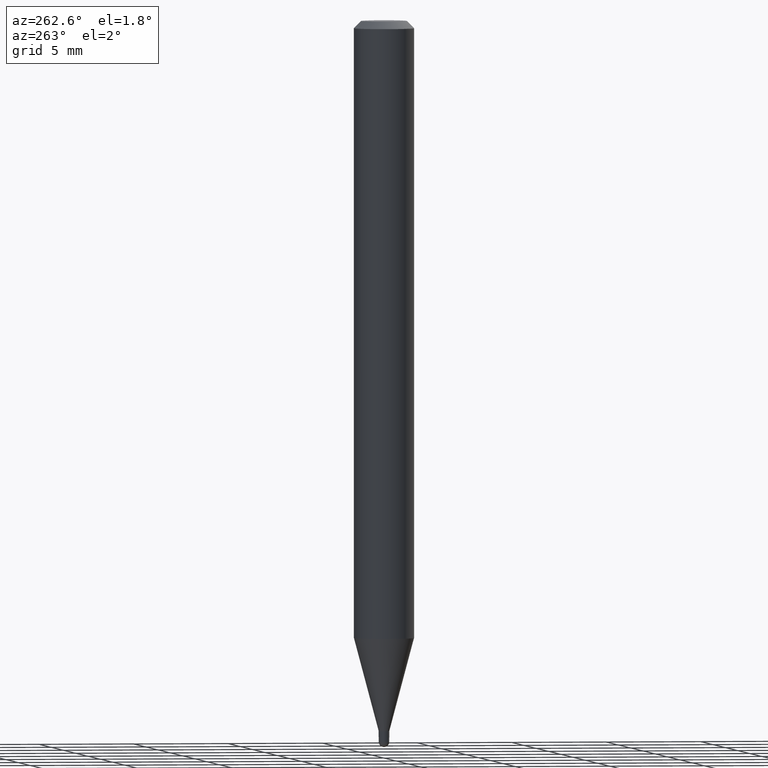
[diagram: clean part render]
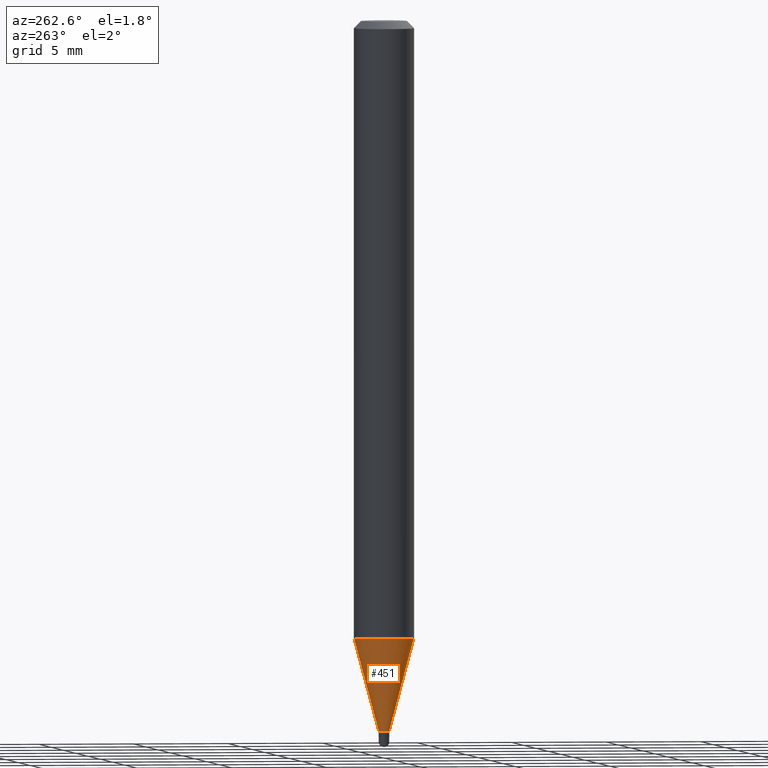
[diagram: same view with one face highlighted and labeled with its STEP entity id]
A machine part, auxiliary view. The second image highlights one B-rep face of the part: STEP entity #451.
In plain terms, the highlighted conical surface has half-angle 15 deg.
Its self-contained STEP definition (entity closure, byte-faithful):
#24 = VECTOR ( 'NONE', #484, 39.37007874015748854 ) ;
#26 = DIRECTION ( 'NONE',  ( -2.445455207626158790E-29, 3.491500812753583960E-15, 1.000000000000000000 ) ) ;
#27 = VERTEX_POINT ( 'NONE', #206 ) ;
#69 = CIRCLE ( 'NONE', #180, 0.01099999999999992477 ) ;
#71 = CARTESIAN_POINT ( 'NONE',  ( 3.117464790839112548E-29, -4.450963083274512992E-15, -1.274799383410209153 ) ) ;
#72 = EDGE_CURVE ( 'NONE', #197, #27, #248, .T. ) ;
#116 = EDGE_CURVE ( 'NONE', #197, #131, #69, .T. ) ;
#124 = CARTESIAN_POINT ( 'NONE',  ( 3.587482789587576279E-29, -5.122031692309510028E-15, -1.467000000000000526 ) ) ;
#125 = DIRECTION ( 'NONE',  ( -2.445455207626158790E-29, 3.491500812753583960E-15, 1.000000000000000000 ) ) ;
#131 = VERTEX_POINT ( 'NONE', #500 ) ;
#145 = CARTESIAN_POINT ( 'NONE',  ( 3.587482789587576279E-29, -5.122031692309510028E-15, -1.467000000000000526 ) ) ;
#157 = ORIENTED_EDGE ( 'NONE', *, *, #72, .F. ) ;
#169 = ORIENTED_EDGE ( 'NONE', *, *, #116, .T. ) ;
#177 = CONICAL_SURFACE ( 'NONE', #337, 0.01099999999999992477, 0.2617993877991575125 ) ;
#180 = AXIS2_PLACEMENT_3D ( 'NONE', #124, #408, #251 ) ;
#197 = VERTEX_POINT ( 'NONE', #443 ) ;
#200 = FACE_OUTER_BOUND ( 'NONE', #223, .T. ) ;
#201 = CARTESIAN_POINT ( 'NONE',  ( 7.815970093364634209E-17, 0.01099999999999480213, -1.467000000000000526 ) ) ;
#203 = EDGE_CURVE ( 'NONE', #27, #309, #328, .T. ) ;
#206 = CARTESIAN_POINT ( 'NONE',  ( 4.440892098500935790E-16, 0.06249999999999553135, -1.274799383410209597 ) ) ;
#223 = EDGE_LOOP ( 'NONE', ( #157, #169, #330, #238 ) ) ;
#238 = ORIENTED_EDGE ( 'NONE', *, *, #203, .F. ) ;
#248 = LINE ( 'NONE', #201, #420 ) ;
#251 = DIRECTION ( 'NONE',  ( -6.982962677686265922E-15, -1.000000000000000000, 0.000000000000000000 ) ) ;
#267 = CARTESIAN_POINT ( 'NONE',  ( -7.681258945451251950E-17, -0.01100000000000504567, -1.467000000000000526 ) ) ;
#282 = CARTESIAN_POINT ( 'NONE',  ( -4.364351673553605094E-16, -0.06250000000000444089, -1.274799383410208931 ) ) ;
#298 = EDGE_CURVE ( 'NONE', #131, #309, #386, .T. ) ;
#309 = VERTEX_POINT ( 'NONE', #282 ) ;
#328 = CIRCLE ( 'NONE', #369, 0.06250000000000000000 ) ;
#330 = ORIENTED_EDGE ( 'NONE', *, *, #298, .T. ) ;
#337 = AXIS2_PLACEMENT_3D ( 'NONE', #145, #125, #413 ) ;
#353 = DIRECTION ( 'NONE',  ( -6.982962677686265922E-15, -1.000000000000000000, 4.370956789862821150E-15 ) ) ;
#369 = AXIS2_PLACEMENT_3D ( 'NONE', #71, #26, #353 ) ;
#386 = LINE ( 'NONE', #267, #24 ) ;
#408 = DIRECTION ( 'NONE',  ( -2.445455207626158790E-29, 3.491500812753583960E-15, 1.000000000000000000 ) ) ;
#413 = DIRECTION ( 'NONE',  ( -6.982962677686265922E-15, -1.000000000000000000, 0.000000000000000000 ) ) ;
#420 = VECTOR ( 'NONE', #508, 39.37007874015748854 ) ;
#443 = CARTESIAN_POINT ( 'NONE',  ( 2.611244553918701824E-16, 0.01099999999999480213, -1.467000000000000526 ) ) ;
#451 = ADVANCED_FACE ( 'NONE', ( #200 ), #177, .T. ) ;
#484 = DIRECTION ( 'NONE',  ( -1.807323732225379049E-15, -0.2588190451025252359, 0.9659258262890670910 ) ) ;
#500 = CARTESIAN_POINT ( 'NONE',  ( -7.681258945451251950E-17, -0.01100000000000504567, -1.467000000000000526 ) ) ;
#508 = DIRECTION ( 'NONE',  ( 1.839019923739649619E-15, 0.2588190451025318972, 0.9659258262890650926 ) ) ;